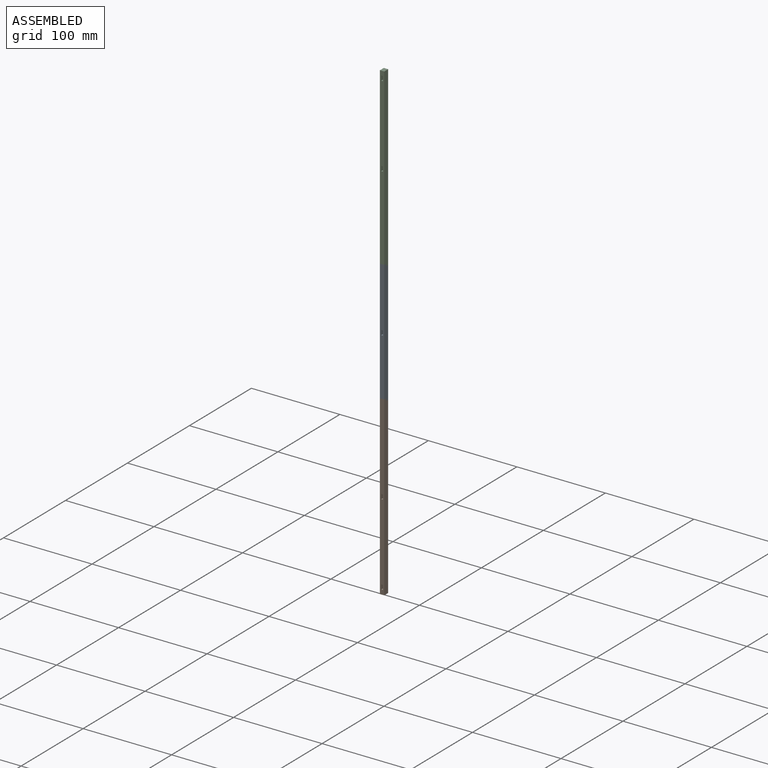
[diagram: assembled view]
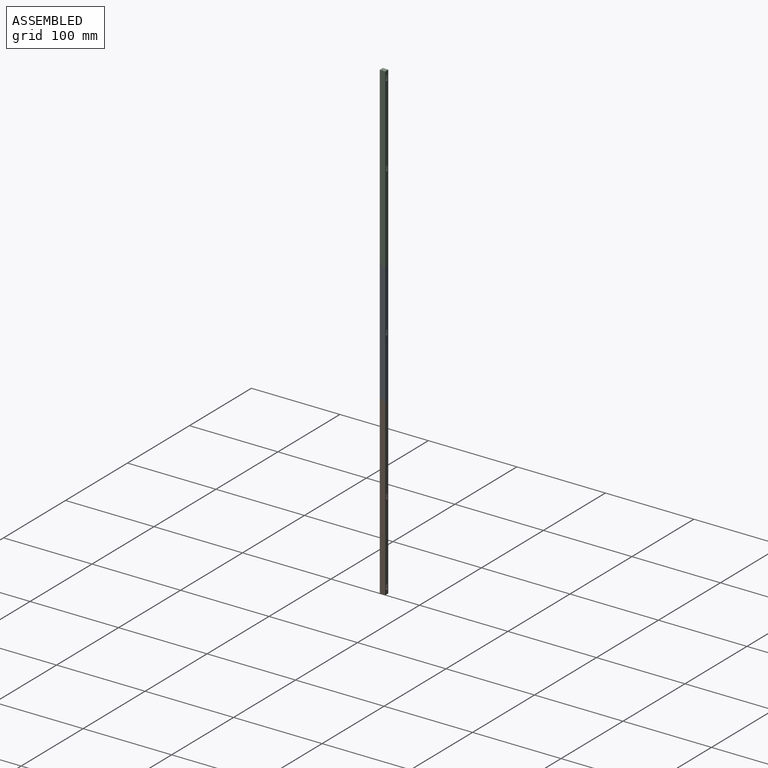
[diagram: assembled view, second angle]
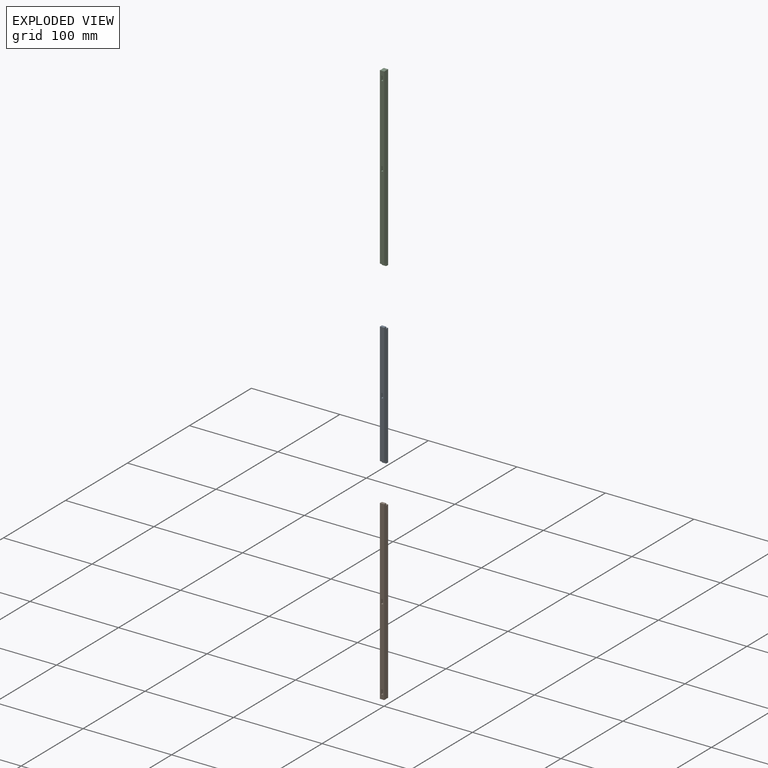
[diagram: exploded view]
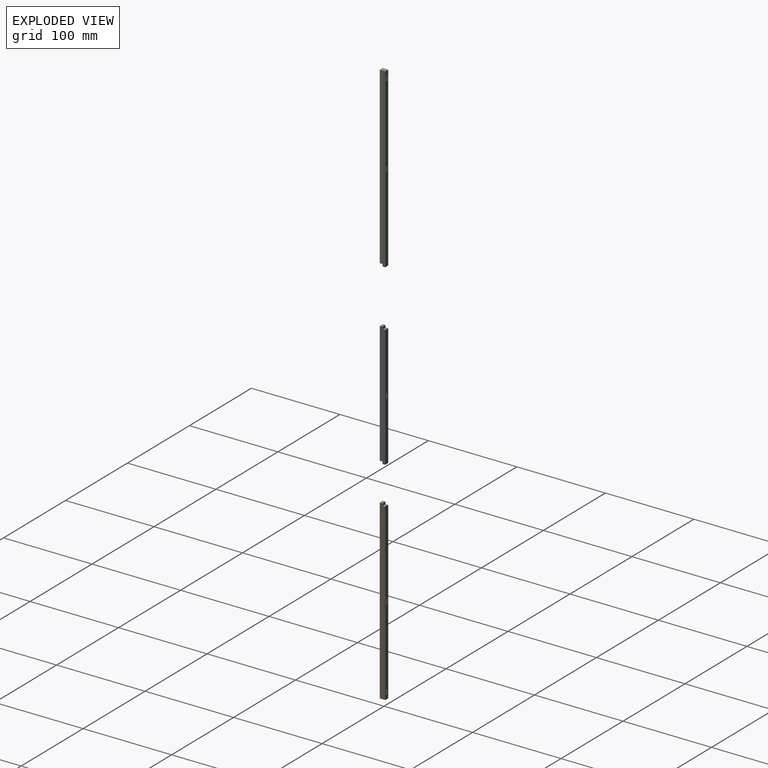
[diagram: exploded view, second angle]
ASSEMBLY  parts=3 mates=4
PART A: 14 faces, bbox 140x4.9x6.3 mm
  f0: plane 4.85x3.13mm, normal (-1,0,0), area 15.2mm2, adj f3,f4,f5,f12
  f1: plane 4.85x3.13mm, normal (1,0,0), area 15.2mm2, adj f2,f4,f5,f10
  f2: plane 137.5x4.85mm, normal (0,0,1), area 656mm2, adj f1,f4,f5,f6,f7,f8,f9,f13
  f3: plane 137.5x4.85mm, normal (0,0,-1), area 656mm2, adj f0,f4,f5,f6,f7,f8,f9,f11
  f4: plane 140x6.25mm, normal (0,-1,0), area 859.4mm2, adj f0,f1,f2,f3,f10,f11,f12,f13
  f5: plane 140x6.25mm, normal (0,1,0), area 859.4mm2, adj f0,f1,f2,f3,f10,f11,f12,f13
  f6: plane 6.25x2.05mm, normal (1,0,0), area 12.8mm2, adj f2,f3,f7,f8
  f7: plane 6.25x5.3mm, normal (0,1,0), area 33.1mm2, adj f2,f3,f6,f9
  f8: plane 6.25x5.3mm, normal (0,-1,0), area 33.1mm2, adj f2,f3,f6,f9
  f9: plane 6.25x2.05mm, normal (-1,0,0), area 12.8mm2, adj f2,f3,f7,f8
  f10: plane 4.85x2.5mm, normal (0,0,-1), area 12.1mm2, adj f1,f4,f5,f11
  f11: plane 4.85x3.13mm, normal (1,0,0), area 15.2mm2, adj f3,f4,f5,f10
  f12: plane 4.85x2.5mm, normal (0,0,1), area 12.1mm2, adj f0,f4,f5,f13
  f13: plane 4.85x3.13mm, normal (-1,0,0), area 15.2mm2, adj f2,f4,f5,f12
PART B: 16 faces, bbox 200x4.9x6.3 mm
  f0: plane 4.85x3.13mm, normal (1,0,0), area 15.2mm2, adj f1,f3,f4,f14
  f1: plane 200x4.85mm, normal (0,0,1), area 948.3mm2, adj f0,f3,f4,f5,f6,f7,f8,f9
  f2: plane 197.5x4.85mm, normal (0,0,-1), area 936.1mm2, adj f3,f4,f5,f6,f7,f8,f9,f10
  f3: plane 200x6.25mm, normal (0,-1,0), area 1242.2mm2, adj f0,f1,f2,f5,f14,f15
  f4: plane 200x6.25mm, normal (0,1,0), area 1242.2mm2, adj f0,f1,f2,f5,f14,f15
  f5: plane 6.25x4.85mm, normal (-1,0,0), area 30.3mm2, adj f1,f2,f3,f4
  f6: plane 6.25x2.05mm, normal (1,0,0), area 12.8mm2, adj f1,f2,f7,f8
  f7: plane 6.25x5.3mm, normal (0,1,0), area 33.1mm2, adj f1,f2,f6,f9
  f8: plane 6.25x5.3mm, normal (0,-1,0), area 33.1mm2, adj f1,f2,f6,f9
  f9: plane 6.25x2.05mm, normal (-1,0,0), area 12.8mm2, adj f1,f2,f7,f8
  f10: plane 6.25x2.05mm, normal (1,0,0), area 12.8mm2, adj f1,f2,f11,f12
  f11: plane 6.25x5.3mm, normal (0,1,0), area 33.1mm2, adj f1,f2,f10,f13
  f12: plane 6.25x5.3mm, normal (0,-1,0), area 33.1mm2, adj f1,f2,f10,f13
  f13: plane 6.25x2.05mm, normal (-1,0,0), area 12.8mm2, adj f1,f2,f11,f12
  f14: plane 4.85x2.5mm, normal (0,0,-1), area 12.1mm2, adj f0,f3,f4,f15
  f15: plane 4.85x3.13mm, normal (1,0,0), area 15.2mm2, adj f2,f3,f4,f14
PART C: same geometry as B
PLACE A rot(axis=(-0.58,0.58,0.58),120deg) t=(0,-3.13,-267.5)mm
PLACE B rot(axis=(0.58,-0.58,0.58),120deg) t=(0,3.12,-535)mm
PLACE C rot(axis=(-0.58,0.58,0.58),120deg) t=(0,-3.12,0)mm
MATE planar A.f12 <-> C.f14  axis (0,1,0) through (0,0,-198.75)mm
MATE planar A.f0 <-> C.f15  axis (0,0,1) through (0,-1.56,-197.5)mm
MATE planar B.f14 <-> A.f10  axis (0,1,0) through (0,0,-336.25)mm
MATE planar B.f0 <-> A.f11  axis (0,0,1) through (0,-1.56,-335)mm
